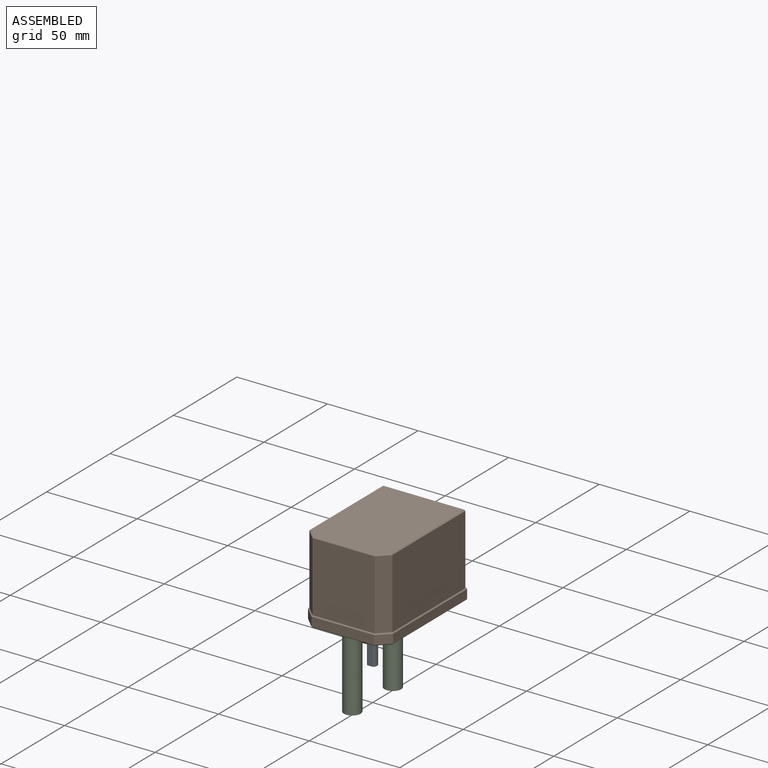
[diagram: assembled view]
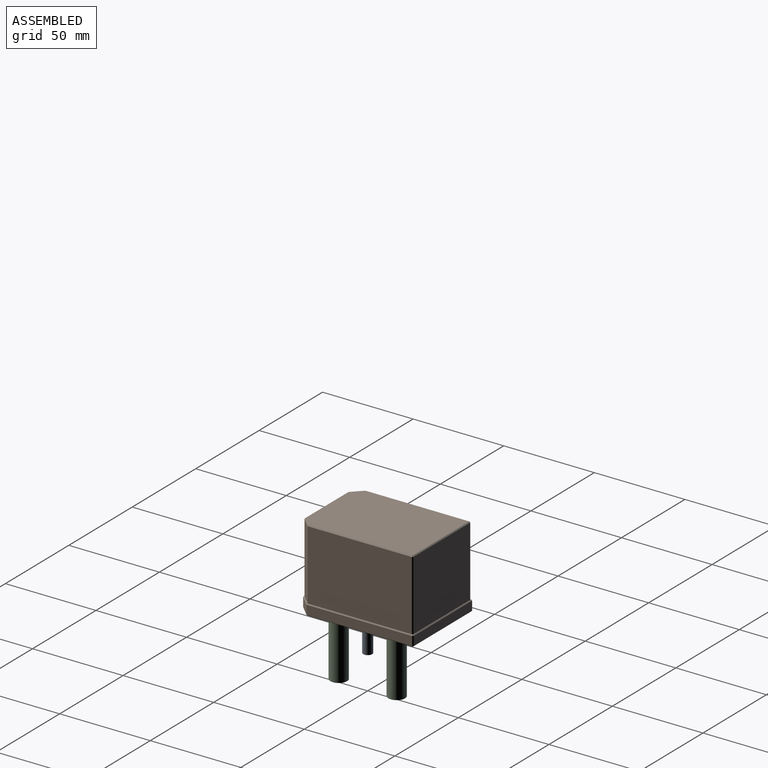
[diagram: assembled view, second angle]
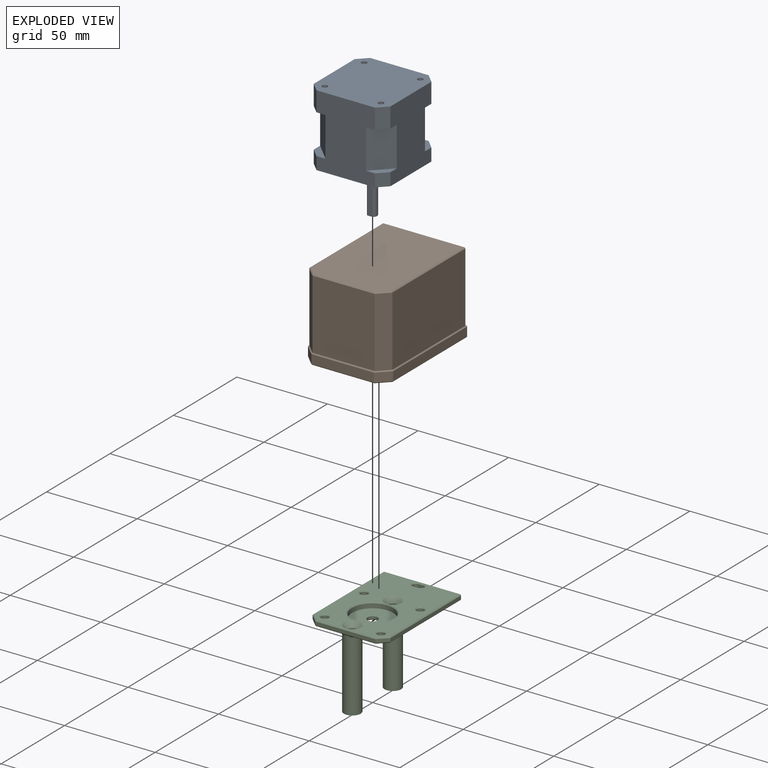
[diagram: exploded view]
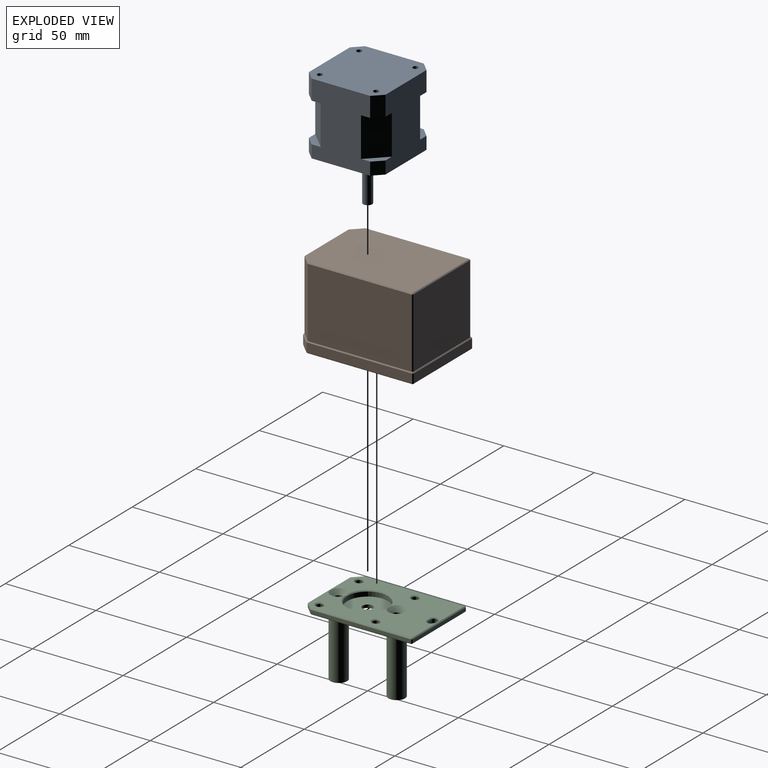
[diagram: exploded view, second angle]
ASSEMBLY  parts=3 mates=2
PART A: 48 faces, bbox 42.3x65.8x42.3 mm
  f0: plane 10x10mm, normal (0,1,0), area 37.5mm2, adj f4,f5,f9,f27
  f1: plane 10x10mm, normal (0,1,0), area 37.5mm2, adj f5,f6,f10,f30
  f2: plane 10x10mm, normal (0,1,0), area 37.5mm2, adj f6,f7,f11,f29
  f3: plane 42.3x42.3mm, normal (0,-1,0), area 1330.9mm2, adj f4,f5,f6,f7,f9,f10,f11,f12
  f4: plane 39.8x32.3mm, normal (-1,0,0), area 1067.5mm2, adj f0,f3,f8,f9,f12,f27,f28,f31
  f5: plane 39.8x32.3mm, normal (0,0,-1), area 1067.5mm2, adj f0,f1,f3,f9,f10,f27,f30,f31
  f6: plane 39.8x32.3mm, normal (1,0,0), area 1067.5mm2, adj f1,f2,f3,f10,f11,f29,f30,f33
  f7: plane 39.8x32.3mm, normal (0,0,1), area 1067.5mm2, adj f2,f3,f8,f11,f12,f28,f29,f32
  f8: plane 10x10mm, normal (0,1,0), area 37.5mm2, adj f4,f7,f12,f28
  f9: plane 7x5mm, normal (-0.71,0,-0.71), area 49.5mm2, adj f0,f3,f4,f5
  f10: plane 7x5mm, normal (0.71,0,-0.71), area 49.5mm2, adj f1,f3,f5,f6
  f11: plane 7x5mm, normal (0.71,0,0.71), area 49.5mm2, adj f2,f3,f6,f7
  f12: plane 7x5mm, normal (-0.71,0,0.71), area 49.5mm2, adj f3,f4,f7,f8
  f13: cylinder r=11mm len=22mm, axis (0,1,0), area 138.2mm2, adj f3,f14
  f14: plane 22x22mm, normal (0,-1,0), area 360.5mm2, adj f13,f23
  f15: cylinder r=1.5mm len=4.5mm, axis (0,-1,0), area 42.4mm2, adj f3,f16
  f16: plane 3x3mm, normal (0,-1,0), area 7.1mm2, adj f15
  f17: cylinder r=1.5mm len=4.5mm, axis (0,-1,0), area 42.4mm2, adj f3,f18
  f18: plane 3x3mm, normal (0,-1,0), area 7.1mm2, adj f17
  f19: cylinder r=1.5mm len=4.5mm, axis (0,-1,0), area 42.4mm2, adj f3,f20
  f20: plane 3x3mm, normal (0,-1,0), area 7.1mm2, adj f19
  f21: cylinder r=1.5mm len=4.5mm, axis (0,-1,0), area 42.4mm2, adj f3,f22
  f22: plane 3x3mm, normal (0,-1,0), area 7.1mm2, adj f21
  f23: cylinder r=2.5mm len=24mm, axis (0,1,0), area 328.7mm2, adj f14,f24,f25,f26
  f24: plane 5x4.5mm, normal (0,-1,0), area 18.6mm2, adj f23,f25
  f25: plane 15x3mm, normal (0,0,1), area 45mm2, adj f23,f24,f26
  f26: plane 3x0.5mm, normal (0,-1,0), area 1mm2, adj f23,f25
  f27: plane 21.8x10mm, normal (-0.71,0,-0.71), area 308.3mm2, adj f0,f4,f5,f31
  f28: plane 21.8x10mm, normal (-0.71,0,0.71), area 308.3mm2, adj f4,f7,f8,f32
  f29: plane 21.8x10mm, normal (0.71,0,0.71), area 308.3mm2, adj f2,f6,f7,f33
  f30: plane 21.8x10mm, normal (0.71,0,-0.71), area 308.3mm2, adj f1,f5,f6,f34
  f31: plane 10x10mm, normal (0,-1,0), area 37.5mm2, adj f4,f5,f27,f37
  f32: plane 10x10mm, normal (0,-1,0), area 37.5mm2, adj f4,f7,f28,f36
  f33: plane 10x10mm, normal (0,-1,0), area 37.5mm2, adj f6,f7,f29,f39
  f34: plane 10x10mm, normal (0,-1,0), area 37.5mm2, adj f5,f6,f30,f38
  f35: plane 42.3x42.3mm, normal (0,1,0), area 1711mm2, adj f4,f5,f6,f7,f36,f37,f38,f39
  f36: plane 11x5mm, normal (-0.71,0,0.71), area 77.8mm2, adj f4,f7,f32,f35
  f37: plane 11x5mm, normal (-0.71,0,-0.71), area 77.8mm2, adj f4,f5,f31,f35
  f38: plane 11x5mm, normal (0.71,0,-0.71), area 77.8mm2, adj f5,f6,f34,f35
  f39: plane 11x5mm, normal (0.71,0,0.71), area 77.8mm2, adj f6,f7,f33,f35
  f40: cylinder r=1.5mm len=4.5mm, axis (0,1,0), area 42.4mm2, adj f35,f41
  f41: plane 3x3mm, normal (0,1,0), area 7.1mm2, adj f40
  f42: cylinder r=1.5mm len=4.5mm, axis (0,1,0), area 42.4mm2, adj f35,f43
  f43: plane 3x3mm, normal (0,1,0), area 7.1mm2, adj f42
  f44: cylinder r=1.5mm len=4.5mm, axis (0,1,0), area 42.4mm2, adj f35,f45
  f45: plane 3x3mm, normal (0,1,0), area 7.1mm2, adj f44
  f46: cylinder r=1.5mm len=4.5mm, axis (0,1,0), area 42.4mm2, adj f35,f47
  f47: plane 3x3mm, normal (0,1,0), area 7.1mm2, adj f46
PART B: 72 faces, bbox 47x65x45 mm
  f0: plane 64x46mm, normal (0,0,-1), area 169.2mm2, adj f22,f26,f27,f36,f37,f38,f52,f53
  f1: plane 55.83x42.5mm, normal (-1,0,0), area 2372.9mm2, adj f6,f7,f57,f58
  f2: plane 42.5x42.4mm, normal (0,-1,0), area 1802mm2, adj f7,f56,f57,f61
  f3: plane 55.83x42.5mm, normal (1,0,0), area 2372.9mm2, adj f4,f7,f55,f56
  f4: plane 42.5x5.07mm, normal (0.71,0.71,0), area 304.5mm2, adj f3,f5,f7,f53
  f5: plane 42.5x33.27mm, normal (0,1,0), area 1413.8mm2, adj f4,f6,f7,f52
  f6: plane 42.5x5.07mm, normal (-0.71,0.71,0), area 304.5mm2, adj f1,f5,f7,f54
  f7: plane 61.4x43.4mm, normal (0,0,-1), area 2638.8mm2, adj f1,f2,f3,f4,f5,f6,f56,f57
  f8: plane 34.34x5mm, normal (0,-1,0), area 171.7mm2, adj f27,f28,f39,f40
  f9: plane 5.83x5.83mm, normal (0.71,-0.71,0), area 41.2mm2, adj f38,f39,f47,f48
  f10: plane 58.17x5mm, normal (1,0,0), area 290.9mm2, adj f37,f46,f47,f51
  f11: plane 46x5mm, normal (0,1,0), area 230mm2, adj f35,f36,f45,f46
  f12: plane 58.17x5mm, normal (-1,0,0), area 290.9mm2, adj f25,f26,f34,f35
  f13: plane 5.83x5.83mm, normal (-0.71,-0.71,0), area 41.2mm2, adj f22,f25,f28,f29
  f14: plane 64x46mm, normal (0,0,1), area 21.5mm2, adj f16,f17,f18,f19,f20,f21,f29,f34
  f15: plane 62.8x44.8mm, normal (0,0,1), area 2783.4mm2, adj f62,f64,f65,f67,f68,f69
  f16: plane 38.5x5.77mm, normal (0.71,-0.71,0), area 314.2mm2, adj f14,f17,f21,f62
  f17: plane 38.5x34.26mm, normal (0,-1,0), area 1319mm2, adj f14,f16,f18,f65
  f18: plane 38.5x5.77mm, normal (-0.71,-0.71,0), area 314.2mm2, adj f14,f17,f19,f67
  f19: plane 57.53x38.5mm, normal (-1,0,0), area 2214.9mm2, adj f14,f18,f69,f71
  f20: plane 44.8x38.5mm, normal (0,1,0), area 1724.8mm2, adj f14,f63,f68,f71
  f21: plane 57.53x38.5mm, normal (1,0,0), area 2214.9mm2, adj f14,f16,f63,f64
  f22: plane 6.18x6.18mm, normal (-0.5,-0.5,-0.71), area 5.8mm2, adj f0,f13,f23,f24
  f23: plane 0.5x0.5mm, normal (-0.68,-0.28,-0.68), area 0.1mm2, adj f22,f25,f26
  f24: plane 0.5x0.5mm, normal (-0.28,-0.68,-0.68), area 0.1mm2, adj f22,f27,f28
  f25: plane 5x0.35mm, normal (-0.92,-0.38,0), area 1.9mm2, adj f12,f13,f23,f30
  f26: plane 58.17x0.5mm, normal (-0.71,0,-0.71), area 41.1mm2, adj f0,f12,f23,f31
  f27: plane 34.34x0.5mm, normal (0,-0.71,-0.71), area 24.3mm2, adj f0,f8,f24,f32
  f28: plane 5x0.35mm, normal (-0.38,-0.92,0), area 1.9mm2, adj f8,f13,f24,f33
  f29: plane 6.18x6.18mm, normal (-0.5,-0.5,0.71), area 5.8mm2, adj f13,f14,f30,f33
  f30: plane 0.5x0.5mm, normal (-0.68,-0.28,0.68), area 0.1mm2, adj f25,f29,f34
  f31: plane 0.5x0.5mm, normal (-0.58,0.58,-0.58), area 0.2mm2, adj f26,f35,f36
  f32: plane 0.5x0.5mm, normal (0.28,-0.68,-0.68), area 0.1mm2, adj f27,f38,f39
  f33: plane 0.5x0.5mm, normal (-0.28,-0.68,0.68), area 0.1mm2, adj f28,f29,f40
  f34: plane 58.17x0.5mm, normal (-0.71,0,0.71), area 41.1mm2, adj f12,f14,f30,f41
  f35: plane 5x0.5mm, normal (-0.71,0.71,0), area 3.5mm2, adj f11,f12,f31,f41
  f36: plane 46x0.5mm, normal (0,0.71,-0.71), area 32.5mm2, adj f0,f11,f31,f42
  f37: plane 58.17x0.5mm, normal (0.71,0,-0.71), area 41.1mm2, adj f0,f10,f42,f43
  f38: plane 6.18x6.18mm, normal (0.5,-0.5,-0.71), area 5.8mm2, adj f0,f9,f32,f43
  f39: plane 5x0.35mm, normal (0.38,-0.92,0), area 1.9mm2, adj f8,f9,f32,f44
  f40: plane 34.34x0.5mm, normal (0,-0.71,0.71), area 24.3mm2, adj f8,f14,f33,f44
  f41: plane 0.5x0.5mm, normal (-0.58,0.58,0.58), area 0.2mm2, adj f34,f35,f45
  f42: plane 0.5x0.5mm, normal (0.58,0.58,-0.58), area 0.2mm2, adj f36,f37,f46
  f43: plane 0.5x0.5mm, normal (0.68,-0.28,-0.68), area 0.1mm2, adj f37,f38,f47
  f44: plane 0.5x0.5mm, normal (0.28,-0.68,0.68), area 0.1mm2, adj f39,f40,f48
  f45: plane 46x0.5mm, normal (0,0.71,0.71), area 32.5mm2, adj f11,f14,f41,f49
  f46: plane 5x0.5mm, normal (0.71,0.71,0), area 3.5mm2, adj f10,f11,f42,f49
  f47: plane 5x0.35mm, normal (0.92,-0.38,0), area 1.9mm2, adj f9,f10,f43,f50
  f48: plane 6.18x6.18mm, normal (0.5,-0.5,0.71), area 5.8mm2, adj f9,f14,f44,f50
  f49: plane 0.5x0.5mm, normal (0.58,0.58,0.58), area 0.2mm2, adj f45,f46,f51
  f50: plane 0.5x0.5mm, normal (0.68,-0.28,0.68), area 0.1mm2, adj f47,f48,f51
  f51: plane 58.17x0.5mm, normal (0.71,0,0.71), area 41.1mm2, adj f10,f14,f49,f50
  f52: plane 33.68x0.5mm, normal (0,0.71,-0.71), area 23.7mm2, adj f0,f5,f53,f54
  f53: plane 5.57x5.57mm, normal (0.5,0.5,-0.71), area 5.2mm2, adj f0,f4,f52,f55
  f54: plane 5.57x5.57mm, normal (-0.5,0.5,-0.71), area 5.2mm2, adj f0,f6,f52,f58
  f55: plane 56.04x0.5mm, normal (0.71,0,-0.71), area 39.6mm2, adj f0,f3,f53,f59
  f56: plane 42.5x0.5mm, normal (0.71,-0.71,0), area 30.1mm2, adj f2,f3,f7,f59
  f57: plane 42.5x0.5mm, normal (-0.71,-0.71,0), area 30.1mm2, adj f1,f2,f7,f60
  f58: plane 56.04x0.5mm, normal (-0.71,0,-0.71), area 39.6mm2, adj f0,f1,f54,f60
  f59: plane 1x1mm, normal (0.58,-0.58,-0.58), area 0.6mm2, adj f0,f55,f56,f61
  f60: plane 1x1mm, normal (-0.58,-0.58,-0.58), area 0.6mm2, adj f0,f57,f58,f61
  f61: plane 42.4x0.5mm, normal (0,-0.71,-0.71), area 30mm2, adj f0,f2,f59,f60
  f62: plane 5.98x5.98mm, normal (0.5,-0.5,0.71), area 5.6mm2, adj f15,f16,f64,f65
  f63: plane 38.5x0.5mm, normal (0.71,0.71,0), area 27.2mm2, adj f14,f20,f21,f66
  f64: plane 57.53x0.5mm, normal (0.71,0,0.71), area 40.6mm2, adj f15,f21,f62,f66
  f65: plane 34.26x0.5mm, normal (0,-0.71,0.71), area 24.1mm2, adj f15,f17,f62,f67
  f66: plane 0.5x0.5mm, normal (0.58,0.58,0.58), area 0.2mm2, adj f63,f64,f68
  f67: plane 5.98x5.98mm, normal (-0.5,-0.5,0.71), area 5.6mm2, adj f15,f18,f65,f69
  f68: plane 44.8x0.5mm, normal (0,0.71,0.71), area 31.7mm2, adj f15,f20,f66,f70
  f69: plane 57.53x0.5mm, normal (-0.71,0,0.71), area 40.6mm2, adj f15,f19,f67,f70
  f70: plane 0.5x0.5mm, normal (-0.58,0.58,0.58), area 0.2mm2, adj f68,f69,f71
  f71: plane 38.5x0.5mm, normal (-0.71,0.71,0), area 27.2mm2, adj f14,f19,f20,f70
PART C: 68 faces, bbox 43x61x43 mm
  f0: cone r=5.6mm half-angle=45deg, axis (0,0,1), area 13.8mm2, adj f1,f23,f24,f43
  f1: plane 60x42mm, normal (0,0,-1), area 1674.8mm2, adj f0,f23,f34,f35,f36,f37,f43,f44
  f2: plane 33.1x2mm, normal (0,-1,0), area 66.2mm2, adj f3,f12,f43,f49
  f3: plane 4.95x4.95mm, normal (0.71,-0.71,0), area 14mm2, adj f2,f4,f45,f53
  f4: plane 55.55x2mm, normal (1,0,0), area 111.1mm2, adj f3,f48,f56,f57
  f5: plane 42x2mm, normal (0,1,0), area 84mm2, adj f47,f55,f56,f60
  f6: plane 55.55x2mm, normal (-1,0,0), area 111.1mm2, adj f12,f46,f54,f55
  f7: cylinder r=1.9mm len=3.8mm, axis (0,0,-1), area 11.9mm2, adj f8,f13,f30,f34
  f8: plane 2.4x2mm, normal (0,-1,0), area 4.8mm2, adj f7,f9,f32,f36
  f9: cylinder r=1.9mm len=3.8mm, axis (0,0,-1), area 11.9mm2, adj f8,f13,f33,f37
  f10: cylinder r=2.2mm len=40.6mm, axis (0,0,-1), area 561.2mm2, adj f25,f29
  f11: cylinder r=11.3mm len=22.6mm, axis (0,0,-1), area 177.5mm2, adj f22,f38
  f12: plane 4.95x4.95mm, normal (-0.71,-0.71,0), area 14mm2, adj f2,f6,f44,f50
  f13: plane 2.4x2mm, normal (0,1,0), area 4.8mm2, adj f7,f9,f31,f35
  f14: cylinder r=2mm len=4mm, axis (0,0,-1), area 25.1mm2, adj f41,f64
  f15: cylinder r=2mm len=4mm, axis (0,0,-1), area 25.1mm2, adj f42,f63
  f16: cylinder r=2mm len=4mm, axis (0,0,-1), area 25.1mm2, adj f40,f65
  f17: cylinder r=2mm len=4mm, axis (0,0,-1), area 25.1mm2, adj f39,f62
  f18: cylinder r=2.2mm len=40.6mm, axis (0,0,-1), area 561.2mm2, adj f27,f28
  f19: plane 60x42mm, normal (0,0,1), area 1821.5mm2, adj f28,f29,f30,f31,f32,f33,f38,f39
  f20: cylinder r=2.8mm len=5.6mm, axis (0,0,1), area 26.4mm2, adj f22,f61
  f21: plane 22.6x22.6mm, normal (0,0,-1), area 366.9mm2, adj f23,f61
  f22: plane 22.6x22.6mm, normal (0,0,1), area 376.5mm2, adj f11,f20
  f23: cone r=13.3mm half-angle=45deg, axis (0,0,1), area 191mm2, adj f0,f1,f21,f24,f26,f66,f67
  f24: cylinder r=4.6mm len=39.6mm, axis (0,0,1), area 1126.1mm2, adj f0,f23,f25,f43,f67
  f25: plane 9.2x9.2mm, normal (0,0,-1), area 51.3mm2, adj f10,f24
  f26: cylinder r=4.6mm len=39mm, axis (0,0,1), area 1124.2mm2, adj f23,f27,f66
  f27: plane 9.2x9.2mm, normal (0,0,-1), area 51.3mm2, adj f18,f26
  f28: cone r=2.2mm half-angle=45deg, axis (0,0,1), area 71.9mm2, adj f18,f19,f38
  f29: cone r=2.2mm half-angle=45deg, axis (0,0,1), area 71.9mm2, adj f10,f19,f38
  f30: cone r=1.9mm half-angle=45deg, axis (0,0,1), area 4.8mm2, adj f7,f19,f31,f32
  f31: plane 2.4x0.5mm, normal (0,0.71,0.71), area 1.7mm2, adj f13,f19,f30,f33
  f32: plane 2.4x0.5mm, normal (0,-0.71,0.71), area 1.7mm2, adj f8,f19,f30,f33
  f33: cone r=1.9mm half-angle=45deg, axis (0,0,1), area 4.8mm2, adj f9,f19,f31,f32
  f34: cone r=2.4mm half-angle=45deg, axis (0,0,-1), area 4.8mm2, adj f1,f7,f35,f36
  f35: plane 2.4x0.5mm, normal (0,0.71,-0.71), area 1.7mm2, adj f1,f13,f34,f37
  f36: plane 2.4x0.5mm, normal (0,-0.71,-0.71), area 1.7mm2, adj f1,f8,f34,f37
  f37: cone r=2.4mm half-angle=45deg, axis (0,0,-1), area 4.8mm2, adj f1,f9,f35,f36
  f38: cone r=11.3mm half-angle=45deg, axis (0,0,1), area 50.1mm2, adj f11,f19,f28,f29
  f39: cone r=2mm half-angle=45deg, axis (0,0,1), area 10mm2, adj f17,f19
  f40: cone r=2mm half-angle=45deg, axis (0,0,1), area 10mm2, adj f16,f19
  f41: cone r=2mm half-angle=45deg, axis (0,0,1), area 10mm2, adj f14,f19
  f42: cone r=2mm half-angle=45deg, axis (0,0,1), area 10mm2, adj f15,f19
  f43: plane 33.12x1.52mm, normal (0,-0.71,-0.71), area 27.4mm2, adj f0,f1,f2,f24,f44,f45,f67
  f44: plane 5.16x5.16mm, normal (-0.5,-0.5,-0.71), area 4.8mm2, adj f1,f12,f43,f46
  f45: plane 5.16x5.16mm, normal (0.5,-0.5,-0.71), area 4.8mm2, adj f1,f3,f43,f48
  f46: plane 55.55x0.5mm, normal (-0.71,0,-0.71), area 39.2mm2, adj f1,f6,f44,f51
  f47: plane 42x0.5mm, normal (0,0.71,-0.71), area 29.7mm2, adj f1,f5,f51,f52
  f48: plane 55.55x0.5mm, normal (0.71,0,-0.71), area 39.2mm2, adj f1,f4,f45,f52
  f49: plane 33.1x0.5mm, normal (0,-0.71,0.71), area 23.3mm2, adj f2,f19,f50,f53
  f50: plane 5.16x5.16mm, normal (-0.5,-0.5,0.71), area 4.8mm2, adj f12,f19,f49,f54
  f51: plane 0.5x0.5mm, normal (-0.58,0.58,-0.58), area 0.2mm2, adj f46,f47,f55
  f52: plane 0.5x0.5mm, normal (0.58,0.58,-0.58), area 0.2mm2, adj f47,f48,f56
  f53: plane 5.16x5.16mm, normal (0.5,-0.5,0.71), area 4.8mm2, adj f3,f19,f49,f57
  f54: plane 55.55x0.5mm, normal (-0.71,0,0.71), area 39.2mm2, adj f6,f19,f50,f58
  f55: plane 2x0.5mm, normal (-0.71,0.71,0), area 1.4mm2, adj f5,f6,f51,f58
  f56: plane 2x0.5mm, normal (0.71,0.71,0), area 1.4mm2, adj f4,f5,f52,f59
  f57: plane 55.55x0.5mm, normal (0.71,0,0.71), area 39.2mm2, adj f4,f19,f53,f59
  f58: plane 0.5x0.5mm, normal (-0.58,0.58,0.58), area 0.2mm2, adj f54,f55,f60
  f59: plane 0.5x0.5mm, normal (0.58,0.58,0.58), area 0.2mm2, adj f56,f57,f60
  f60: plane 42x0.5mm, normal (0,0.71,0.71), area 29.7mm2, adj f5,f19,f58,f59
  f61: cone r=3.3mm half-angle=45deg, axis (0,0,-1), area 13.6mm2, adj f20,f21
  f62: cone r=2.5mm half-angle=45deg, axis (0,0,-1), area 10mm2, adj f1,f17
  f63: cone r=2.5mm half-angle=45deg, axis (0,0,-1), area 10mm2, adj f1,f15
  f64: cone r=2.5mm half-angle=45deg, axis (0,0,-1), area 10mm2, adj f1,f14
  f65: cone r=2.5mm half-angle=45deg, axis (0,0,-1), area 10mm2, adj f1,f16
  f66: cone r=5.6mm half-angle=45deg, axis (0,0,1), area 34.8mm2, adj f1,f23,f26
  f67: cone r=5.6mm half-angle=45deg, axis (0,0,1), area 13.8mm2, adj f1,f23,f24,f43
PLACE A rot(axis=(1,0,0),90deg) t=(18.45,13.43,7)mm
PLACE B t=(0,0,-3.2)mm
PLACE C t=(0,0,-3.2)mm
MATE fastened B.f0 <-> C.f1  axis (0,0,-1) through (0,-22.2,-3.2)mm
MATE fastened A.f13 <-> C.f11  axis (0,0,-1) through (0,0,0)mm
